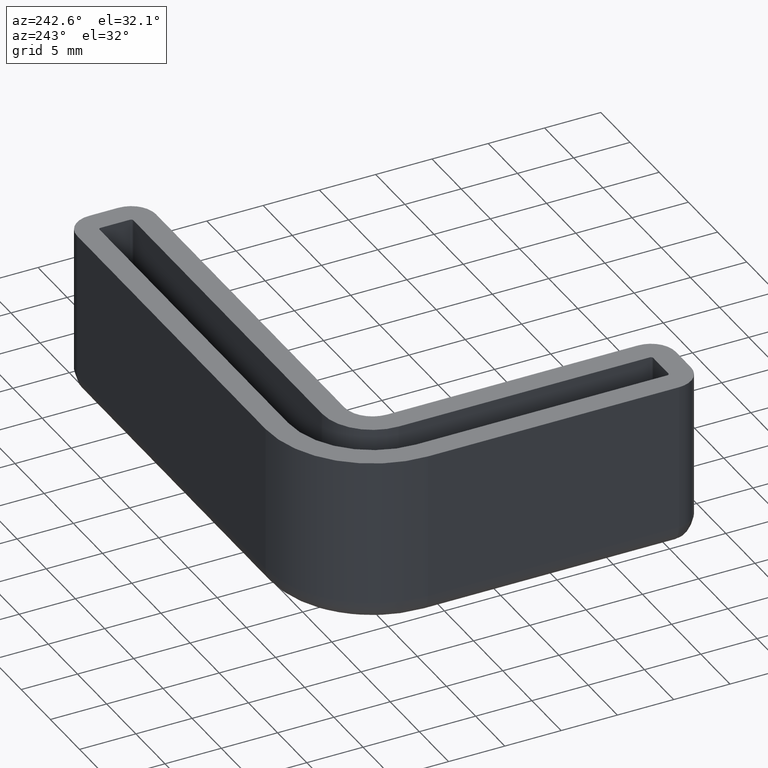
[diagram: clean part render]
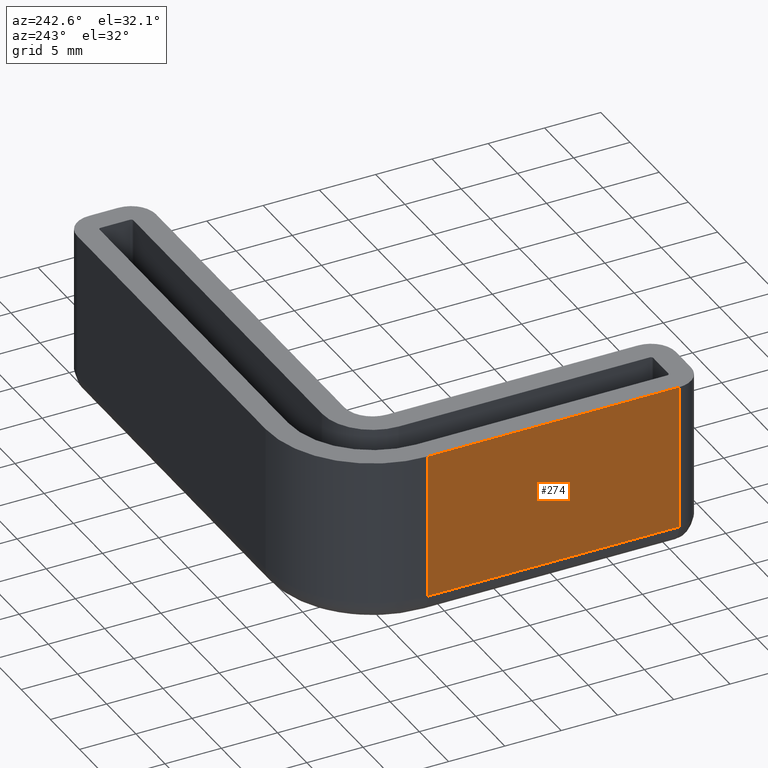
[diagram: same view with one face highlighted and labeled with its STEP entity id]
A machine part, auxiliary view. The second image highlights one B-rep face of the part: STEP entity #274.
In plain terms, the highlighted planar face has unit normal (-1, -0, 0).
Its self-contained STEP definition (entity closure, byte-faithful):
#274 = ADVANCED_FACE( '', ( #340 ), #341, .T. );
#340 = FACE_OUTER_BOUND( '', #456, .T. );
#341 = PLANE( '', #457 );
#456 = EDGE_LOOP( '', ( #732, #733, #734, #735 ) );
#457 = AXIS2_PLACEMENT_3D( '', #736, #737, #738 );
#732 = ORIENTED_EDGE( '', *, *, #1209, .F. );
#733 = ORIENTED_EDGE( '', *, *, #1210, .T. );
#734 = ORIENTED_EDGE( '', *, *, #1211, .T. );
#735 = ORIENTED_EDGE( '', *, *, #1167, .F. );
#736 = CARTESIAN_POINT( '', ( -2.00000000000000, -7.50000000000001, -15.0000000000000 ) );
#737 = DIRECTION( '', ( -1.00000000000000, -6.12303176911189E-017, 0.000000000000000 ) );
#738 = DIRECTION( '', ( -6.12303176911189E-017, 1.00000000000000, 0.000000000000000 ) );
#1167 = EDGE_CURVE( '', #1294, #1296, #1297, .T. );
#1209 = EDGE_CURVE( '', #1372, #1294, #1374, .T. );
#1210 = EDGE_CURVE( '', #1372, #1375, #1376, .T. );
#1211 = EDGE_CURVE( '', #1375, #1296, #1377, .T. );
#1294 = VERTEX_POINT( '', #1500 );
#1296 = VERTEX_POINT( '', #1502 );
#1297 = LINE( '', #1503, #1504 );
#1372 = VERTEX_POINT( '', #1602 );
#1374 = LINE( '', #1604, #1605 );
#1375 = VERTEX_POINT( '', #1606 );
#1376 = LINE( '', #1607, #1608 );
#1377 = LINE( '', #1609, #1610 );
#1500 = CARTESIAN_POINT( '', ( -2.00000000000000, -7.50000000000000, 0.000000000000000 ) );
#1502 = CARTESIAN_POINT( '', ( -2.00000000000000, -29.8000000000000, 0.000000000000000 ) );
#1503 = CARTESIAN_POINT( '', ( -2.00000000000000, -7.50000000000001, 0.000000000000000 ) );
#1504 = VECTOR( '', #1989, 1000.00000000000 );
#1602 = CARTESIAN_POINT( '', ( -2.00000000000000, -7.50000000000000, -13.0000000000000 ) );
#1604 = CARTESIAN_POINT( '', ( -2.00000000000000, -7.50000000000000, -15.0000000000000 ) );
#1605 = VECTOR( '', #2067, 1000.00000000000 );
#1606 = CARTESIAN_POINT( '', ( -2.00000000000000, -29.8000000000000, -13.0000000000000 ) );
#1607 = CARTESIAN_POINT( '', ( -2.00000000000000, -29.8000000000000, -13.0000000000000 ) );
#1608 = VECTOR( '', #2068, 1000.00000000000 );
#1609 = CARTESIAN_POINT( '', ( -2.00000000000000, -29.8000000000000, -15.0000000000000 ) );
#1610 = VECTOR( '', #2069, 1000.00000000000 );
#1989 = DIRECTION( '', ( 6.12303176911189E-017, -1.00000000000000, 0.000000000000000 ) );
#2067 = DIRECTION( '', ( 0.000000000000000, 0.000000000000000, 1.00000000000000 ) );
#2068 = DIRECTION( '', ( 6.12303176911189E-017, -1.00000000000000, 0.000000000000000 ) );
#2069 = DIRECTION( '', ( 0.000000000000000, 0.000000000000000, 1.00000000000000 ) );